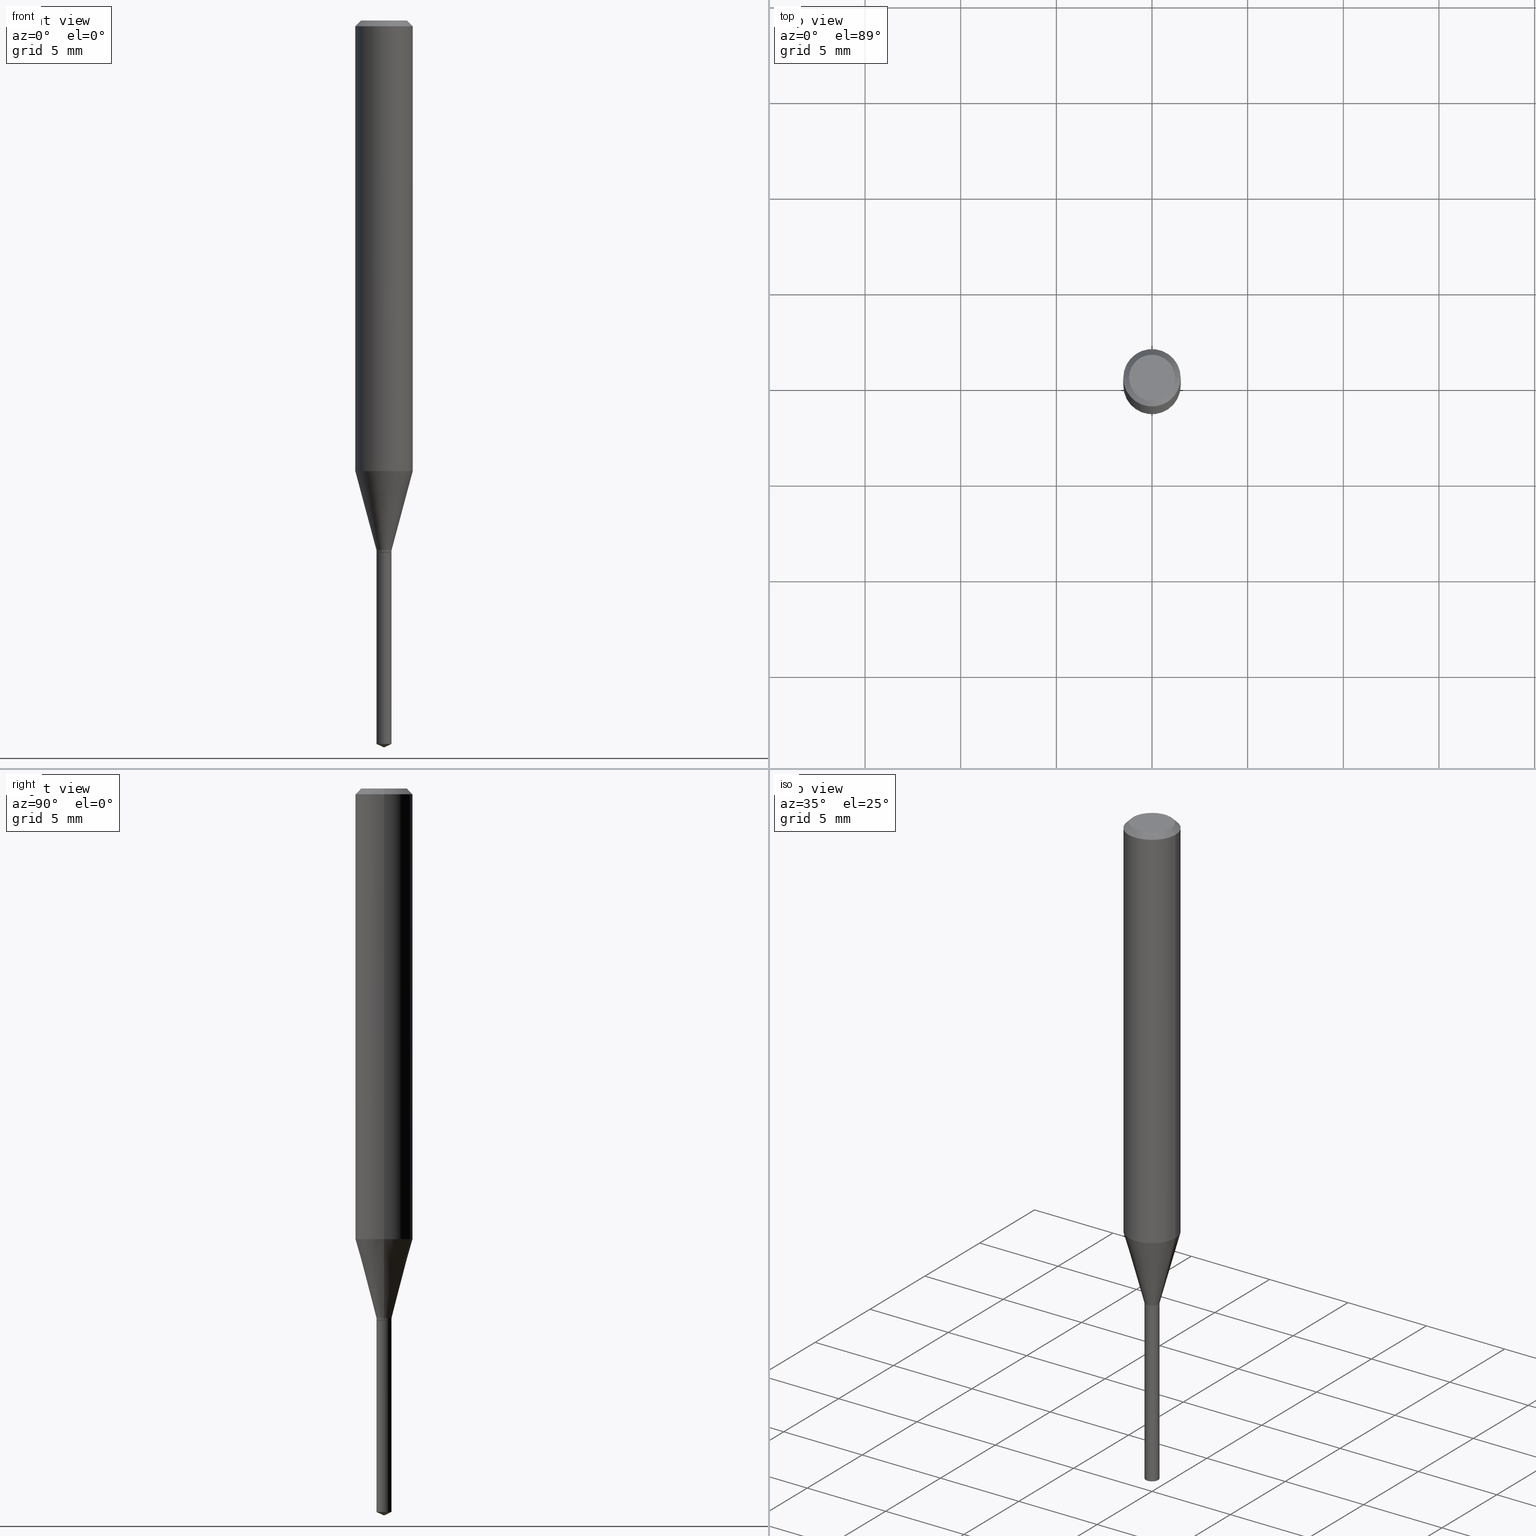
[diagram: canonical four-view strip — front | top / right | iso, engineering-drawing reading convention]
A machine part, canonical four-view strip (front | top / right | iso — engineering-drawing reading convention). The complete STEP part file that produces these views, byte-faithful:
ISO-10303-21;
HEADER;
FILE_DESCRIPTION (( 'STEP AP203' ),
    '1' );
FILE_NAME ('07799.STEP',
    '2024-04-24T03:17:24',
    ( '' ),
    ( '' ),
    'SwSTEP 2.0',
    'SolidWorks 2023',
    '' );
FILE_SCHEMA (( 'CONFIG_CONTROL_DESIGN' ));
ENDSEC;

DATA;
#1 = ORIENTED_EDGE ( 'NONE', *, *, #365, .T. ) ;
#2 = DIRECTION ( 'NONE',  ( -1.000000000000000000, 6.982962677686266711E-15, 0.000000000000000000 ) ) ;
#3 = EDGE_LOOP ( 'NONE', ( #434, #405, #49, #160 ) ) ;
#4 = EDGE_CURVE ( 'NONE', #55, #474, #259, .T. ) ;
#5 = CARTESIAN_POINT ( 'NONE',  ( -9.261968845786000133E-28, 1.322362114038720264E-13, 37.87397874015748300 ) ) ;
#6 = CIRCLE ( 'NONE', #463, 0.05904999999999999832 ) ;
#7 = DIRECTION ( 'NONE',  ( 6.982962677686265922E-15, 1.000000000000000000, -3.491479321953280158E-15 ) ) ;
#8 = ADVANCED_FACE ( 'NONE', ( #450 ), #169, .T. ) ;
#9 = CARTESIAN_POINT ( 'NONE',  ( 2.676565608369631794E-29, -3.821426325363822773E-15, -1.094499999999999806 ) ) ;
#10 = EDGE_CURVE ( 'NONE', #55, #226, #229, .T. ) ;
#11 = DIRECTION ( 'NONE',  ( -2.445468806185136597E-29, 3.491481338843145583E-15, 1.000000000000000000 ) ) ;
#12 = AXIS2_PLACEMENT_3D ( 'NONE', #380, #415, #65 ) ;
#13 = AXIS2_PLACEMENT_3D ( 'NONE', #390, #212, #276 ) ;
#14 = AXIS2_PLACEMENT_3D ( 'NONE', #332, #477, #142 ) ;
#15 = CARTESIAN_POINT ( 'NONE',  ( 2.676565608369632355E-29, -3.821426325363822773E-15, -1.094500000000000028 ) ) ;
#16 = CC_DESIGN_PERSON_AND_ORGANIZATION_ASSIGNMENT ( #107, #443, ( #481 ) ) ;
#17 = DIRECTION ( 'NONE',  ( 1.000000000000000000, -6.982962677686265922E-15, 4.876176775795935793E-29 ) ) ;
#18 = ORIENTED_EDGE ( 'NONE', *, *, #408, .T. ) ;
#19 = CARTESIAN_POINT ( 'NONE',  ( -0.01554999999999999959, -3.701859078472134923E-15, -1.093999999999999861 ) ) ;
#20 = EDGE_LOOP ( 'NONE', ( #404, #18, #346 ) ) ;
#21 = VECTOR ( 'NONE', #246, 39.37007874015748143 ) ;
#22 = LOCAL_TIME ( 23, 17, 24.00000000000000000, #37 ) ;
#23 = DIRECTION ( 'NONE',  ( -2.445468806185136597E-29, 3.491481338843145583E-15, 1.000000000000000000 ) ) ;
#24 = CC_DESIGN_PERSON_AND_ORGANIZATION_ASSIGNMENT ( #68, #309, ( #428 ) ) ;
#25 = EDGE_LOOP ( 'NONE', ( #306, #269 ) ) ;
#26 = DIRECTION ( 'NONE',  ( -2.445470214571802116E-29, 3.491479321953280158E-15, 1.000000000000000000 ) ) ;
#27 = VERTEX_POINT ( 'NONE', #157 ) ;
#28 = APPROVAL_ROLE ( '' ) ;
#29 = ORIENTED_EDGE ( 'NONE', *, *, #360, .F. ) ;
#30 =( CONVERSION_BASED_UNIT ( 'INCH', #191 ) LENGTH_UNIT ( ) NAMED_UNIT ( #249 ) );
#31 = CONICAL_SURFACE ( 'NONE', #121, 84.42940631927405093, 1.134464013796314674 ) ;
#32 = EDGE_CURVE ( 'NONE', #226, #334, #427, .T. ) ;
#33 = CARTESIAN_POINT ( 'NONE',  ( 0.04724000000000000421, -3.852183633974369345E-16, -3.380025165621689721E-19 ) ) ;
#34 = DIRECTION ( 'NONE',  ( 2.438088387897960049E-29, -3.491481338843145188E-15, -1.000000000000000000 ) ) ;
#35 = APPROVAL_DATE_TIME ( #236, #231 ) ;
#36 = EDGE_LOOP ( 'NONE', ( #195, #227, #402, #416 ) ) ;
#37 = COORDINATED_UNIVERSAL_TIME_OFFSET ( 5, 0, .BEHIND. ) ;
#38 = AXIS2_PLACEMENT_3D ( 'NONE', #190, #447, #75 ) ;
#39 = DIRECTION ( 'NONE',  ( -6.982962677686265922E-15, -1.000000000000000000, 0.000000000000000000 ) ) ;
#40 = EDGE_LOOP ( 'NONE', ( #158, #181, #175, #490 ) ) ;
#41 = CC_DESIGN_APPROVAL ( #129, ( #428 ) ) ;
#42 = EDGE_CURVE ( 'NONE', #381, #254, #200, .T. ) ;
#43 = CYLINDRICAL_SURFACE ( 'NONE', #153, 0.01554999999999999959 ) ;
#44 = VERTEX_POINT ( 'NONE', #234 ) ;
#45 = FACE_OUTER_BOUND ( 'NONE', #145, .T. ) ;
#46 = DIRECTION ( 'NONE',  ( -2.445468806185136597E-29, 3.491481338843145583E-15, 1.000000000000000000 ) ) ;
#47 = AXIS2_PLACEMENT_3D ( 'NONE', #356, #11, #130 ) ;
#48 = CYLINDRICAL_SURFACE ( 'NONE', #313, 0.05905000000000005383 ) ;
#49 = ORIENTED_EDGE ( 'NONE', *, *, #435, .T. ) ;
#50 = PLANE ( 'NONE',  #358 ) ;
#51 = CARTESIAN_POINT ( 'NONE',  ( 3.658667988020872822E-29, -5.223602213574301462E-15, -1.496099999999999985 ) ) ;
#52 = EDGE_CURVE ( 'NONE', #474, #55, #119, .T. ) ;
#53 = ADVANCED_FACE ( 'NONE', ( #80 ), #305, .F. ) ;
#54 = CARTESIAN_POINT ( 'NONE',  ( -0.01504999999999999914, -3.711840416457816439E-15, -1.094500000000000028 ) ) ;
#55 = VERTEX_POINT ( 'NONE', #263 ) ;
#56 = APPLICATION_CONTEXT ( 'configuration controlled 3d designs of mechanical parts and assemblies' ) ;
#57 = LINE ( 'NONE', #433, #144 ) ;
#58 = EDGE_CURVE ( 'NONE', #381, #217, #161, .T. ) ;
#59 = ORIENTED_EDGE ( 'NONE', *, *, #352, .T. ) ;
#60 = CIRCLE ( 'NONE', #223, 0.01554999999999999959 ) ;
#61 = CIRCLE ( 'NONE', #196, 0.05905000000000010935 ) ;
#62 = CARTESIAN_POINT ( 'NONE',  ( 1.104893954107319992E-16, 0.01554999999999480235, -1.488848915915689686 ) ) ;
#63 = ORIENTED_EDGE ( 'NONE', *, *, #383, .T. ) ;
#64 = CALENDAR_DATE ( 2024, 23, 4 ) ;
#65 = DIRECTION ( 'NONE',  ( 1.000000000000000000, -6.982962677686258822E-15, 0.000000000000000000 ) ) ;
#66 = ADVANCED_FACE ( 'NONE', ( #71 ), #320, .T. ) ;
#67 = AXIS2_PLACEMENT_3D ( 'NONE', #446, #34, #110 ) ;
#68 = PERSON_AND_ORGANIZATION ( #123, #343 ) ;
#69 = VECTOR ( 'NONE', #108, 39.37007874015748143 ) ;
#70 = AXIS2_PLACEMENT_3D ( 'NONE', #425, #46, #85 ) ;
#71 = FACE_OUTER_BOUND ( 'NONE', #140, .T. ) ;
#72 = FACE_OUTER_BOUND ( 'NONE', #20, .T. ) ;
#73 = ORIENTED_EDGE ( 'NONE', *, *, #42, .F. ) ;
#74 = APPROVAL_STATUS ( 'not_yet_approved' ) ;
#75 = DIRECTION ( 'NONE',  ( 1.000000000000000000, -6.982962677686266711E-15, 0.000000000000000000 ) ) ;
#76 = ORIENTED_EDGE ( 'NONE', *, *, #187, .F. ) ;
#77 = DATE_TIME_ROLE ( 'classification_date' ) ;
#78 = LOCAL_TIME ( 23, 17, 24.00000000000000000, #379 ) ;
#79 = AXIS2_PLACEMENT_3D ( 'NONE', #485, #338, #150 ) ;
#80 = FACE_OUTER_BOUND ( 'NONE', #25, .T. ) ;
#81 = ORIENTED_EDGE ( 'NONE', *, *, #277, .T. ) ;
#82 = CARTESIAN_POINT ( 'NONE',  ( -1.085850696379850431E-16, -0.01555000000000520202, -1.488848915915689686 ) ) ;
#83 = ADVANCED_FACE ( 'NONE', ( #192 ), #340, .T. ) ;
#84 = PERSON_AND_ORGANIZATION ( #123, #343 ) ;
#85 = DIRECTION ( 'NONE',  ( 1.000000000000000000, -6.982962677686258822E-15, 0.000000000000000000 ) ) ;
#86 = ADVANCED_FACE ( 'NONE', ( #72 ), #299, .T. ) ;
#87 = CARTESIAN_POINT ( 'NONE',  ( -1.085850696379946697E-16, -0.01555000000000382118, -1.094499999999999806 ) ) ;
#88 = AXIS2_PLACEMENT_3D ( 'NONE', #452, #273, #194 ) ;
#89 = AXIS2_PLACEMENT_3D ( 'NONE', #370, #397, #399 ) ;
#90 = COORDINATED_UNIVERSAL_TIME_OFFSET ( 5, 0, .BEHIND. ) ;
#91 = CYLINDRICAL_SURFACE ( 'NONE', #170, 0.01554999999999999959 ) ;
#92 = ORIENTED_EDGE ( 'NONE', *, *, #337, .T. ) ;
#93 = DIRECTION ( 'NONE',  ( -6.982962677686265922E-15, -1.000000000000000000, 0.000000000000000000 ) ) ;
#94 = CARTESIAN_POINT ( 'NONE',  ( -0.01554999999999999959, -3.694526967660564608E-15, -1.089799999999999880 ) ) ;
#95 = ADVANCED_FACE ( 'NONE', ( #417 ), #112, .T. ) ;
#96 = VECTOR ( 'NONE', #350, 39.37007874015748854 ) ;
#97 = DIRECTION ( 'NONE',  ( -2.445468806185136597E-29, 3.491481338843145583E-15, 1.000000000000000000 ) ) ;
#98 = LINE ( 'NONE', #131, #322 ) ;
#99 = ORIENTED_EDGE ( 'NONE', *, *, #323, .T. ) ;
#100 = CARTESIAN_POINT ( 'NONE',  ( -4.260016345039616409E-29, -1.375500648837224634E-14, -1.094500000000000028 ) ) ;
#101 = CONICAL_SURFACE ( 'NONE', #89, 0.01554999999999999959, 0.2617993877991498519 ) ;
#102 = AXIS2_PLACEMENT_3D ( 'NONE', #480, #233, #310 ) ;
#103 = VERTEX_POINT ( 'NONE', #342 ) ;
#104 = AXIS2_PLACEMENT_3D ( 'NONE', #284, #248, #2 ) ;
#105 = DIRECTION ( 'NONE',  ( -2.445470214571802116E-29, 3.491479321953280158E-15, 1.000000000000000000 ) ) ;
#106 = ORIENTED_EDGE ( 'NONE', *, *, #468, .F. ) ;
#107 = PERSON_AND_ORGANIZATION ( #123, #343 ) ;
#108 = DIRECTION ( 'NONE',  ( -2.445470214571802396E-29, 3.491479321953280158E-15, 1.000000000000000000 ) ) ;
#109 = CC_DESIGN_PERSON_AND_ORGANIZATION_ASSIGNMENT ( #193, #335, ( #114 ) ) ;
#110 = DIRECTION ( 'NONE',  ( -1.000000000000000000, 6.982962677686265922E-15, -4.876176775795935793E-29 ) ) ;
#111 = CARTESIAN_POINT ( 'NONE',  ( 0.01554999999999999959, -1.085850696380214293E-16, 7.582454886362679997E-31 ) ) ;
#112 = CYLINDRICAL_SURFACE ( 'NONE', #240, 0.05905000000000005383 ) ;
#113 = EDGE_LOOP ( 'NONE', ( #63, #92, #106, #76 ) ) ;
#114 = PRODUCT_DEFINITION ( 'UNKNOWN', '', #428, #208 ) ;
#115 = PERSON_AND_ORGANIZATION_ROLE ( 'design_owner' ) ;
#116 = CARTESIAN_POINT ( 'NONE',  ( -0.05904999999999999832, 3.711095515056362547E-16, -0.01181000000000007044 ) ) ;
#117 = DIRECTION ( 'NONE',  ( -2.445470214571802116E-29, 3.491479321953280158E-15, 1.000000000000000000 ) ) ;
#118 = EDGE_LOOP ( 'NONE', ( #348, #328, #442, #419 ) ) ;
#119 = CIRCLE ( 'NONE', #79, 0.04724000000000000421 ) ;
#120 = CARTESIAN_POINT ( 'NONE',  ( 1.104893954107320238E-16, 0.01554999999999617626, -1.094499999999999806 ) ) ;
#121 = AXIS2_PLACEMENT_3D ( 'NONE', #5, #455, #392 ) ;
#122 = CARTESIAN_POINT ( 'NONE',  ( 2.665071904980561815E-29, -3.805016363071259851E-15, -1.089799999999999880 ) ) ;
#123 = PERSON ( 'UNSPECIFIED', 'UNSPECIFIED', 'UNSPECIFIED', ('UNSPECIFIED'), ('UNSPECIFIED'), ('UNSPECIFIED') ) ;
#124 = APPROVAL_DATE_TIME ( #389, #424 ) ;
#125 = CARTESIAN_POINT ( 'NONE',  ( 0.01554999999999999959, -3.913601432709281317E-15, -1.089799999999999880 ) ) ;
#126 = UNCERTAINTY_MEASURE_WITH_UNIT (LENGTH_MEASURE( 1.000000000000000082E-05 ), #30, 'distance_accuracy_value', 'NONE');
#127 = APPROVAL_ROLE ( '' ) ;
#128 = FACE_OUTER_BOUND ( 'NONE', #118, .T. ) ;
#129 = APPROVAL ( #382, 'UNSPECIFIED' ) ;
#130 = DIRECTION ( 'NONE',  ( 1.000000000000000000, -6.982962677686258822E-15, 0.000000000000000000 ) ) ;
#131 = CARTESIAN_POINT ( 'NONE',  ( 3.658668015054778287E-29, -5.223602213574301462E-15, -1.496099999999999985 ) ) ;
#132 = DIRECTION ( 'NONE',  ( -2.445468806185136597E-29, 3.491481338843145583E-15, 1.000000000000000000 ) ) ;
#133 = CARTESIAN_POINT ( 'NONE',  ( 2.665071904980561815E-29, -3.805016363071259851E-15, -1.089799999999999880 ) ) ;
#134 = ORIENTED_EDGE ( 'NONE', *, *, #58, .T. ) ;
#135 = VECTOR ( 'NONE', #186, 39.37007874015748143 ) ;
#136 = AXIS2_PLACEMENT_3D ( 'NONE', #173, #26, #257 ) ;
#137 = DIRECTION ( 'NONE',  ( 1.000000000000000000, -6.982962677686265922E-15, 4.876176775795935793E-29 ) ) ;
#138 = EDGE_LOOP ( 'NONE', ( #222, #224, #256, #388 ) ) ;
#139 = LINE ( 'NONE', #94, #407 ) ;
#140 = EDGE_LOOP ( 'NONE', ( #177, #143, #385, #311 ) ) ;
#141 = ORIENTED_EDGE ( 'NONE', *, *, #323, .F. ) ;
#142 = DIRECTION ( 'NONE',  ( 1.000000000000000000, -6.982962677686261189E-15, 0.000000000000000000 ) ) ;
#143 = ORIENTED_EDGE ( 'NONE', *, *, #279, .T. ) ;
#144 = VECTOR ( 'NONE', #438, 39.37007874015748143 ) ;
#145 = EDGE_LOOP ( 'NONE', ( #99, #1, #369, #372 ) ) ;
#146 = VECTOR ( 'NONE', #355, 39.37007874015748143 ) ;
#147 = APPROVAL_PERSON_ORGANIZATION ( #152, #129, #28 ) ;
#148 = PRODUCT_DEFINITION_SHAPE ( 'NONE', 'NONE',  #114 ) ;
#149 = DIRECTION ( 'NONE',  ( 1.000000000000000000, -6.982962677686267499E-15, 0.000000000000000000 ) ) ;
#150 = DIRECTION ( 'NONE',  ( 1.000000000000000000, -6.982962677686266711E-15, 4.876185090822587894E-29 ) ) ;
#151 = AXIS2_PLACEMENT_3D ( 'NONE', #467, #132, #288 ) ;
#152 = PERSON_AND_ORGANIZATION ( #123, #343 ) ;
#153 = AXIS2_PLACEMENT_3D ( 'NONE', #282, #247, #396 ) ;
#154 =( GEOMETRIC_REPRESENTATION_CONTEXT ( 3 ) GLOBAL_UNCERTAINTY_ASSIGNED_CONTEXT ( ( #126 ) ) GLOBAL_UNIT_ASSIGNED_CONTEXT ( ( #30, #270, #197 ) ) REPRESENTATION_CONTEXT ( 'NONE', 'WORKASPACE' ) );
#155 = CARTESIAN_POINT ( 'NONE',  ( -0.01504999999999999914, -3.714489643631927640E-15, -1.094500000000000028 ) ) ;
#156 = DATE_AND_TIME ( #344, #22 ) ;
#157 = CARTESIAN_POINT ( 'NONE',  ( -1.085850696379946697E-16, -0.01555000000000382118, -1.094499999999999806 ) ) ;
#158 = ORIENTED_EDGE ( 'NONE', *, *, #365, .F. ) ;
#159 = CARTESIAN_POINT ( 'NONE',  ( 2.675342873966538993E-29, -3.819680584694400481E-15, -1.093999999999999861 ) ) ;
#160 = ORIENTED_EDGE ( 'NONE', *, *, #462, .F. ) ;
#161 = CIRCLE ( 'NONE', #471, 0.01554999999999999959 ) ;
#162 = CARTESIAN_POINT ( 'NONE',  ( 0.01554999999999999959, -3.913601432709281317E-15, -1.089799999999999880 ) ) ;
#163 = AXIS2_PLACEMENT_3D ( 'NONE', #9, #461, #93 ) ;
#164 = CALENDAR_DATE ( 2024, 23, 4 ) ;
#165 = FACE_OUTER_BOUND ( 'NONE', #470, .T. ) ;
#166 = DIRECTION ( 'NONE',  ( -2.445468806185136597E-29, 3.491481338843145583E-15, 1.000000000000000000 ) ) ;
#167 = ORIENTED_EDGE ( 'NONE', *, *, #283, .T. ) ;
#168 = CARTESIAN_POINT ( 'NONE',  ( 0.05905000000000010935, -3.650538529053141123E-15, -0.9274557898707536108 ) ) ;
#169 = CONICAL_SURFACE ( 'NONE', #12, 0.01504999999999999914, 0.7853981633972754173 ) ;
#170 = AXIS2_PLACEMENT_3D ( 'NONE', #314, #458, #464 ) ;
#171 = CIRCLE ( 'NONE', #199, 0.05905000000000010935 ) ;
#172 = DIRECTION ( 'NONE',  ( 1.000000000000000000, -6.982962677686261189E-15, 0.000000000000000000 ) ) ;
#173 = CARTESIAN_POINT ( 'NONE',  ( 2.676565608369631794E-29, -3.821426325363822773E-15, -1.094499999999999806 ) ) ;
#174 = EDGE_CURVE ( 'NONE', #439, #449, #489, .T. ) ;
#175 = ORIENTED_EDGE ( 'NONE', *, *, #466, .T. ) ;
#176 = DIRECTION ( 'NONE',  ( -2.445468806185136877E-29, 3.491481338843145188E-15, 1.000000000000000000 ) ) ;
#177 = ORIENTED_EDGE ( 'NONE', *, *, #52, .F. ) ;
#178 = MANIFOLD_SOLID_BREP ( 'Body-Move/Copy2[1]', #280 ) ;
#179 = DIRECTION ( 'NONE',  ( -2.438088387897960049E-29, 3.491481338843145188E-15, 1.000000000000000000 ) ) ;
#180 = VERTEX_POINT ( 'NONE', #243 ) ;
#181 = ORIENTED_EDGE ( 'NONE', *, *, #462, .T. ) ;
#182 = DIRECTION ( 'NONE',  ( 1.000000000000000000, -6.982962677686267499E-15, 0.000000000000000000 ) ) ;
#183 = ORIENTED_EDGE ( 'NONE', *, *, #304, .F. ) ;
#184 = ORIENTED_EDGE ( 'NONE', *, *, #435, .F. ) ;
#185 = PERSON_AND_ORGANIZATION ( #123, #343 ) ;
#186 = DIRECTION ( 'NONE',  ( -0.7071067811864253372, 7.493145998869912398E-15, 0.7071067811866698083 ) ) ;
#187 = EDGE_CURVE ( 'NONE', #235, #307, #429, .T. ) ;
#188 = CIRCLE ( 'NONE', #281, 0.01554999999999999959 ) ;
#189 = MECHANICAL_CONTEXT ( 'NONE', #211, 'mechanical' ) ;
#190 = CARTESIAN_POINT ( 'NONE',  ( 2.888098660104663766E-31, -4.123439461173779647E-17, -0.01181000000000007044 ) ) ;
#191 = LENGTH_MEASURE_WITH_UNIT ( LENGTH_MEASURE( 0.02539999999999999897 ), #451 );
#192 = FACE_OUTER_BOUND ( 'NONE', #476, .T. ) ;
#193 = PERSON_AND_ORGANIZATION ( #123, #343 ) ;
#194 = DIRECTION ( 'NONE',  ( -6.982962677686267499E-15, -1.000000000000000000, 3.520397390770465703E-15 ) ) ;
#195 = ORIENTED_EDGE ( 'NONE', *, *, #326, .T. ) ;
#196 = AXIS2_PLACEMENT_3D ( 'NONE', #378, #303, #149 ) ;
#197 =( NAMED_UNIT ( * ) SI_UNIT ( $, .STERADIAN. ) SOLID_ANGLE_UNIT ( ) );
#198 = AXIS2_PLACEMENT_3D ( 'NONE', #15, #293, #475 ) ;
#199 = AXIS2_PLACEMENT_3D ( 'NONE', #436, #296, #182 ) ;
#200 = LINE ( 'NONE', #237, #69 ) ;
#201 = ORIENTED_EDGE ( 'NONE', *, *, #32, .F. ) ;
#202 = DIRECTION ( 'NONE',  ( 1.000000000000000000, -6.982962677686261189E-15, 0.000000000000000000 ) ) ;
#203 = EDGE_LOOP ( 'NONE', ( #262, #167 ) ) ;
#204 = DIRECTION ( 'NONE',  ( 1.000000000000000000, -6.982962677686266711E-15, 4.876176775795935793E-29 ) ) ;
#205 = ADVANCED_FACE ( 'NONE', ( #423 ), #48, .T. ) ;
#206 = LINE ( 'NONE', #275, #411 ) ;
#207 = LOCAL_TIME ( 23, 17, 24.00000000000000000, #341 ) ;
#208 = DESIGN_CONTEXT ( 'detailed design', #56, 'design' ) ;
#209 = SHAPE_DEFINITION_REPRESENTATION ( #148, #286 ) ;
#210 = CARTESIAN_POINT ( 'NONE',  ( 0.05904999999999999832, -4.463468013801466955E-16, -0.01181000000000007044 ) ) ;
#211 = APPLICATION_CONTEXT ( 'configuration controlled 3d designs of mechanical parts and assemblies' ) ;
#212 = DIRECTION ( 'NONE',  ( -2.445468806185136597E-29, 3.491481338843145583E-15, 1.000000000000000000 ) ) ;
#213 = ADVANCED_FACE ( 'NONE', ( #128 ), #393, .T. ) ;
#214 = CARTESIAN_POINT ( 'NONE',  ( -0.05905000000000010935, -2.818619097469426315E-15, -0.9274557898707536108 ) ) ;
#215 = VECTOR ( 'NONE', #486, 39.37007874015748143 ) ;
#216 = DIRECTION ( 'NONE',  ( 1.000000000000000000, -6.982962677686266711E-15, 0.000000000000000000 ) ) ;
#217 = VERTEX_POINT ( 'NONE', #82 ) ;
#218 = ADVANCED_FACE ( 'NONE', ( #165 ), #31, .T. ) ;
#219 = DIRECTION ( 'NONE',  ( 1.000000000000000000, -6.982962677686261189E-15, 0.000000000000000000 ) ) ;
#220 = ORIENTED_EDGE ( 'NONE', *, *, #58, .F. ) ;
#221 = CARTESIAN_POINT ( 'NONE',  ( 3.658664905062460986E-29, -5.223606628546217219E-15, -1.496099999999999985 ) ) ;
#222 = ORIENTED_EDGE ( 'NONE', *, *, #279, .F. ) ;
#223 = AXIS2_PLACEMENT_3D ( 'NONE', #159, #431, #172 ) ;
#224 = ORIENTED_EDGE ( 'NONE', *, *, #4, .F. ) ;
#225 = CARTESIAN_POINT ( 'NONE',  ( 3.640934136390131342E-29, -5.198287410918146511E-15, -1.488848915915689686 ) ) ;
#226 = VERTEX_POINT ( 'NONE', #278 ) ;
#227 = ORIENTED_EDGE ( 'NONE', *, *, #42, .T. ) ;
#228 = APPROVAL_DATE_TIME ( #156, #129 ) ;
#229 = LINE ( 'NONE', #116, #298 ) ;
#230 = VECTOR ( 'NONE', #176, 39.37007874015748143 ) ;
#231 = APPROVAL ( #74, 'UNSPECIFIED' ) ;
#232 = SECURITY_CLASSIFICATION_LEVEL ( 'unclassified' ) ;
#233 = DIRECTION ( 'NONE',  ( 2.445468806185136597E-29, -3.491481338843145583E-15, -1.000000000000000000 ) ) ;
#234 = CARTESIAN_POINT ( 'NONE',  ( 0.01504999999999999914, -3.926519913663001232E-15, -1.094500000000000028 ) ) ;
#235 = VERTEX_POINT ( 'NONE', #162 ) ;
#236 = DATE_AND_TIME ( #64, #78 ) ;
#237 = CARTESIAN_POINT ( 'NONE',  ( 1.104893954107223233E-16, 0.01554999999999617626, -1.094499999999999806 ) ) ;
#238 = EDGE_LOOP ( 'NONE', ( #437, #362, #59, #201 ) ) ;
#239 = CIRCLE ( 'NONE', #14, 0.01554999999999999959 ) ;
#240 = AXIS2_PLACEMENT_3D ( 'NONE', #268, #241, #413 ) ;
#241 = DIRECTION ( 'NONE',  ( -2.445468806185136597E-29, 3.491481338843145583E-15, 1.000000000000000000 ) ) ;
#242 = ADVANCED_FACE ( 'NONE', ( #45 ), #91, .T. ) ;
#243 = CARTESIAN_POINT ( 'NONE',  ( 0.01554999999999999959, -3.928265654332421947E-15, -1.093999999999999861 ) ) ;
#244 = CARTESIAN_POINT ( 'NONE',  ( 2.676565608369631794E-29, -3.821426325363822773E-15, -1.094499999999999806 ) ) ;
#245 = CIRCLE ( 'NONE', #420, 0.01554999999999999959 ) ;
#246 = DIRECTION ( 'NONE',  ( -2.445470214571802396E-29, 3.491479321953280158E-15, 1.000000000000000000 ) ) ;
#247 = DIRECTION ( 'NONE',  ( -2.445470214571802116E-29, 3.491479321953280158E-15, 1.000000000000000000 ) ) ;
#248 = DIRECTION ( 'NONE',  ( 2.445468806185136597E-29, -3.491481338843145583E-15, -1.000000000000000000 ) ) ;
#249 = DIMENSIONAL_EXPONENTS ( 1.000000000000000000, 0.000000000000000000, 0.000000000000000000, 0.000000000000000000, 0.000000000000000000, 0.000000000000000000, 0.000000000000000000 ) ;
#250 = DIRECTION ( 'NONE',  ( 6.439704144417026409E-15, 0.9063077870366516020, 0.4226182617406958331 ) ) ;
#251 = EDGE_CURVE ( 'NONE', #330, #226, #206, .T. ) ;
#252 = VECTOR ( 'NONE', #329, 39.37007874015748143 ) ;
#253 = LINE ( 'NONE', #221, #421 ) ;
#254 = VERTEX_POINT ( 'NONE', #120 ) ;
#255 = CARTESIAN_POINT ( 'NONE',  ( -0.01554999999999999959, 1.104893954106955760E-16, -7.648944065346377773E-31 ) ) ;
#256 = ORIENTED_EDGE ( 'NONE', *, *, #10, .T. ) ;
#257 = DIRECTION ( 'NONE',  ( -6.982962677686265922E-15, -1.000000000000000000, 0.000000000000000000 ) ) ;
#258 = LOCAL_TIME ( 23, 17, 24.00000000000000000, #376 ) ;
#259 = CIRCLE ( 'NONE', #151, 0.04724000000000000421 ) ;
#260 = AXIS2_PLACEMENT_3D ( 'NONE', #133, #465, #219 ) ;
#261 = CARTESIAN_POINT ( 'NONE',  ( 0.000000000000000000, 0.000000000000000000, 0.000000000000000000 ) ) ;
#262 = ORIENTED_EDGE ( 'NONE', *, *, #375, .T. ) ;
#263 = CARTESIAN_POINT ( 'NONE',  ( -0.04724000000000000421, 3.504923541997677355E-16, -3.380025165670481712E-19 ) ) ;
#264 = EDGE_CURVE ( 'NONE', #103, #235, #245, .T. ) ;
#265 = CIRCLE ( 'NONE', #47, 0.01504999999999999914 ) ;
#266 = CC_DESIGN_SECURITY_CLASSIFICATION ( #481, ( #428 ) ) ;
#267 = DIRECTION ( 'NONE',  ( 0.000000000000000000, 0.000000000000000000, 1.000000000000000000 ) ) ;
#268 = CARTESIAN_POINT ( 'NONE',  ( 0.000000000000000000, 0.000000000000000000, 0.000000000000000000 ) ) ;
#269 = ORIENTED_EDGE ( 'NONE', *, *, #52, .T. ) ;
#270 =( NAMED_UNIT ( * ) PLANE_ANGLE_UNIT ( ) SI_UNIT ( $, .RADIAN. ) );
#271 = ORIENTED_EDGE ( 'NONE', *, *, #448, .T. ) ;
#272 = ADVANCED_FACE ( 'NONE', ( #319 ), #367, .T. ) ;
#273 = DIRECTION ( 'NONE',  ( -2.445470214571802116E-29, 3.491479321953280158E-15, 1.000000000000000000 ) ) ;
#274 = ADVANCED_FACE ( 'NONE', ( #354 ), #50, .F. ) ;
#275 = CARTESIAN_POINT ( 'NONE',  ( -0.05905000000000005383, 4.195754854663395423E-16, -2.904631170795524694E-30 ) ) ;
#276 = DIRECTION ( 'NONE',  ( 1.000000000000000000, -6.982962677686261189E-15, 0.000000000000000000 ) ) ;
#277 = EDGE_CURVE ( 'NONE', #217, #27, #459, .T. ) ;
#278 = CARTESIAN_POINT ( 'NONE',  ( -0.05904999999999999832, -1.220139003307412078E-15, -0.01181000000000007044 ) ) ;
#279 = EDGE_CURVE ( 'NONE', #474, #334, #395, .T. ) ;
#280 = CLOSED_SHELL ( 'NONE', ( #287, #86, #218, #83, #274 ) ) ;
#281 = AXIS2_PLACEMENT_3D ( 'NONE', #225, #105, #363 ) ;
#282 = CARTESIAN_POINT ( 'NONE',  ( 2.676565608369631794E-29, -3.821426325363822773E-15, -1.094499999999999806 ) ) ;
#283 = EDGE_CURVE ( 'NONE', #254, #27, #377, .T. ) ;
#284 = CARTESIAN_POINT ( 'NONE',  ( 2.888098660104663766E-31, -4.123439461173779647E-17, -0.01181000000000007044 ) ) ;
#285 = CARTESIAN_POINT ( 'NONE',  ( 0.05905000000000005383, -4.123439461173744271E-16, 2.879382386107502672E-30 ) ) ;
#286 = ADVANCED_BREP_SHAPE_REPRESENTATION ( '07799', ( #178, #484, #394 ), #154 ) ;
#287 = ADVANCED_FACE ( 'NONE', ( #347 ), #43, .T. ) ;
#288 = DIRECTION ( 'NONE',  ( 1.000000000000000000, -6.982962677686266711E-15, 4.876185090822587894E-29 ) ) ;
#289 = CARTESIAN_POINT ( 'NONE',  ( 2.888098660104663766E-31, -4.123439461173779647E-17, -0.01181000000000007044 ) ) ;
#290 = ORIENTED_EDGE ( 'NONE', *, *, #408, .F. ) ;
#291 = DIRECTION ( 'NONE',  ( -6.328713451373370956E-15, -0.9063077870366487154, 0.4226182617407022724 ) ) ;
#292 = EDGE_LOOP ( 'NONE', ( #364, #333, #141, #184 ) ) ;
#293 = DIRECTION ( 'NONE',  ( -2.445468806185136597E-29, 3.491481338843145583E-15, 1.000000000000000000 ) ) ;
#294 = EDGE_LOOP ( 'NONE', ( #368, #295, #453, #374 ) ) ;
#295 = ORIENTED_EDGE ( 'NONE', *, *, #251, .T. ) ;
#296 = DIRECTION ( 'NONE',  ( -2.445468806185136597E-29, 3.491481338843145583E-15, 1.000000000000000000 ) ) ;
#297 = APPROVAL_PERSON_ORGANIZATION ( #301, #231, #409 ) ;
#298 = VECTOR ( 'NONE', #345, 39.37007874015748143 ) ;
#299 = CONICAL_SURFACE ( 'NONE', #88, 84.42940631927405093, 1.134464013796314674 ) ;
#300 = LOCAL_TIME ( 23, 17, 24.00000000000000000, #90 ) ;
#301 = PERSON_AND_ORGANIZATION ( #123, #343 ) ;
#302 = PRODUCT ( '07799', '07799', '', ( #189 ) ) ;
#303 = DIRECTION ( 'NONE',  ( -2.445468806185136597E-29, 3.491481338843145583E-15, 1.000000000000000000 ) ) ;
#304 = EDGE_CURVE ( 'NONE', #439, #44, #265, .T. ) ;
#305 = PLANE ( 'NONE',  #67 ) ;
#306 = ORIENTED_EDGE ( 'NONE', *, *, #4, .T. ) ;
#307 = VERTEX_POINT ( 'NONE', #168 ) ;
#308 = ADVANCED_FACE ( 'NONE', ( #321 ), #398, .T. ) ;
#309 = PERSON_AND_ORGANIZATION_ROLE ( 'design_supplier' ) ;
#310 = DIRECTION ( 'NONE',  ( -1.000000000000000000, 6.982962677686266711E-15, 0.000000000000000000 ) ) ;
#311 = ORIENTED_EDGE ( 'NONE', *, *, #10, .F. ) ;
#312 = DIRECTION ( 'NONE',  ( -2.445468806185136877E-29, 3.491481338843145188E-15, 1.000000000000000000 ) ) ;
#313 = AXIS2_PLACEMENT_3D ( 'NONE', #430, #166, #204 ) ;
#314 = CARTESIAN_POINT ( 'NONE',  ( 0.000000000000000000, 0.000000000000000000, 0.000000000000000000 ) ) ;
#315 = PRODUCT_RELATED_PRODUCT_CATEGORY ( 'detail', '', ( #302 ) ) ;
#316 = DATE_AND_TIME ( #164, #258 ) ;
#317 = DIRECTION ( 'NONE',  ( 2.445470214571801836E-29, -3.491479321953280158E-15, -1.000000000000000000 ) ) ;
#318 = CALENDAR_DATE ( 2024, 23, 4 ) ;
#319 = FACE_OUTER_BOUND ( 'NONE', #292, .T. ) ;
#320 = CONICAL_SURFACE ( 'NONE', #102, 0.05904999999999999832, 0.7853981633974452814 ) ;
#321 = FACE_OUTER_BOUND ( 'NONE', #138, .T. ) ;
#322 = VECTOR ( 'NONE', #250, 39.37007874015748143 ) ;
#323 = EDGE_CURVE ( 'NONE', #180, #449, #60, .T. ) ;
#324 = FACE_OUTER_BOUND ( 'NONE', #113, .T. ) ;
#325 = VERTEX_POINT ( 'NONE', #51 ) ;
#326 = EDGE_CURVE ( 'NONE', #217, #381, #188, .T. ) ;
#327 = FACE_OUTER_BOUND ( 'NONE', #478, .T. ) ;
#328 = ORIENTED_EDGE ( 'NONE', *, *, #264, .T. ) ;
#329 = DIRECTION ( 'NONE',  ( -2.445468806185136877E-29, 3.491481338843145188E-15, 1.000000000000000000 ) ) ;
#330 = VERTEX_POINT ( 'NONE', #214 ) ;
#331 = ORIENTED_EDGE ( 'NONE', *, *, #283, .F. ) ;
#332 = CARTESIAN_POINT ( 'NONE',  ( 2.675342873966538993E-29, -3.819680584694400481E-15, -1.093999999999999861 ) ) ;
#333 = ORIENTED_EDGE ( 'NONE', *, *, #174, .T. ) ;
#334 = VERTEX_POINT ( 'NONE', #401 ) ;
#335 = PERSON_AND_ORGANIZATION_ROLE ( 'creator' ) ;
#336 = CLOSED_SHELL ( 'NONE', ( #272, #66, #205, #391, #242, #432, #213, #95, #308, #53, #457, #8 ) ) ;
#337 = EDGE_CURVE ( 'NONE', #103, #330, #139, .T. ) ;
#338 = DIRECTION ( 'NONE',  ( -2.445468806185136597E-29, 3.491481338843145583E-15, 1.000000000000000000 ) ) ;
#339 = DIRECTION ( 'NONE',  ( 1.000000000000000000, 0.000000000000000000, 0.000000000000000000 ) ) ;
#340 = CYLINDRICAL_SURFACE ( 'NONE', #456, 0.01554999999999999959 ) ;
#341 = COORDINATED_UNIVERSAL_TIME_OFFSET ( 5, 0, .BEHIND. ) ;
#342 = CARTESIAN_POINT ( 'NONE',  ( -0.01554999999999999959, -3.701859078472134923E-15, -1.089799999999999880 ) ) ;
#343 = ORGANIZATION ( 'UNSPECIFIED', 'UNSPECIFIED', '' ) ;
#344 = CALENDAR_DATE ( 2024, 23, 4 ) ;
#345 = DIRECTION ( 'NONE',  ( -0.7071067811865453523, 2.468850131082234184E-15, -0.7071067811865496822 ) ) ;
#346 = ORIENTED_EDGE ( 'NONE', *, *, #326, .F. ) ;
#347 = FACE_OUTER_BOUND ( 'NONE', #36, .T. ) ;
#348 = ORIENTED_EDGE ( 'NONE', *, *, #337, .F. ) ;
#349 = CC_DESIGN_PERSON_AND_ORGANIZATION_ASSIGNMENT ( #185, #482, ( #428 ) ) ;
#350 = DIRECTION ( 'NONE',  ( 0.2588190451025211281, 1.565188264969622954E-15, 0.9659258262890679791 ) ) ;
#351 = CIRCLE ( 'NONE', #260, 0.01554999999999999959 ) ;
#352 = EDGE_CURVE ( 'NONE', #307, #334, #359, .T. ) ;
#353 = CIRCLE ( 'NONE', #136, 0.01554999999999999959 ) ;
#354 = FACE_OUTER_BOUND ( 'NONE', #203, .T. ) ;
#355 = DIRECTION ( 'NONE',  ( 0.7071067811865453523, -7.319954787623248157E-15, -0.7071067811865496822 ) ) ;
#356 = CARTESIAN_POINT ( 'NONE',  ( 2.676565608369632355E-29, -3.821426325363822773E-15, -1.094500000000000028 ) ) ;
#357 = CC_DESIGN_APPROVAL ( #231, ( #114 ) ) ;
#358 = AXIS2_PLACEMENT_3D ( 'NONE', #244, #317, #7 ) ;
#359 = LINE ( 'NONE', #285, #252 ) ;
#360 = EDGE_CURVE ( 'NONE', #44, #439, #386, .T. ) ;
#361 = CARTESIAN_POINT ( 'NONE',  ( 0.000000000000000000, 0.000000000000000000, 0.000000000000000000 ) ) ;
#362 = ORIENTED_EDGE ( 'NONE', *, *, #460, .T. ) ;
#363 = DIRECTION ( 'NONE',  ( -6.982962677686265922E-15, -1.000000000000000000, 0.000000000000000000 ) ) ;
#364 = ORIENTED_EDGE ( 'NONE', *, *, #360, .T. ) ;
#365 = EDGE_CURVE ( 'NONE', #449, #103, #406, .T. ) ;
#366 = CYLINDRICAL_SURFACE ( 'NONE', #440, 0.01554999999999999959 ) ;
#367 = CONICAL_SURFACE ( 'NONE', #70, 0.01504999999999999914, 0.7853981633972754173 ) ;
#368 = ORIENTED_EDGE ( 'NONE', *, *, #468, .T. ) ;
#369 = ORIENTED_EDGE ( 'NONE', *, *, #383, .F. ) ;
#370 = CARTESIAN_POINT ( 'NONE',  ( 2.665071904980561815E-29, -3.805016363071259851E-15, -1.089799999999999880 ) ) ;
#371 = EDGE_CURVE ( 'NONE', #334, #226, #6, .T. ) ;
#372 = ORIENTED_EDGE ( 'NONE', *, *, #466, .F. ) ;
#373 = CALENDAR_DATE ( 2024, 23, 4 ) ;
#374 = ORIENTED_EDGE ( 'NONE', *, *, #352, .F. ) ;
#375 = EDGE_CURVE ( 'NONE', #27, #254, #353, .T. ) ;
#376 = COORDINATED_UNIVERSAL_TIME_OFFSET ( 5, 0, .BEHIND. ) ;
#377 = CIRCLE ( 'NONE', #163, 0.01554999999999999959 ) ;
#378 = CARTESIAN_POINT ( 'NONE',  ( 2.268064203244724858E-29, -3.238194582935765808E-15, -0.9274557898707536108 ) ) ;
#379 = COORDINATED_UNIVERSAL_TIME_OFFSET ( 5, 0, .BEHIND. ) ;
#380 = CARTESIAN_POINT ( 'NONE',  ( 2.676565608369632355E-29, -3.821426325363822773E-15, -1.094500000000000028 ) ) ;
#381 = VERTEX_POINT ( 'NONE', #62 ) ;
#382 = APPROVAL_STATUS ( 'not_yet_approved' ) ;
#383 = EDGE_CURVE ( 'NONE', #235, #103, #351, .T. ) ;
#384 = AXIS2_PLACEMENT_3D ( 'NONE', #100, #179, #137 ) ;
#385 = ORIENTED_EDGE ( 'NONE', *, *, #371, .T. ) ;
#386 = CIRCLE ( 'NONE', #198, 0.01504999999999999914 ) ;
#387 = DIRECTION ( 'NONE',  ( -2.445470214571802116E-29, 3.491479321953280158E-15, 1.000000000000000000 ) ) ;
#388 = ORIENTED_EDGE ( 'NONE', *, *, #32, .T. ) ;
#389 = DATE_AND_TIME ( #318, #300 ) ;
#390 = CARTESIAN_POINT ( 'NONE',  ( 2.665071904980561815E-29, -3.805016363071259851E-15, -1.089799999999999880 ) ) ;
#391 = ADVANCED_FACE ( 'NONE', ( #324 ), #101, .T. ) ;
#392 = DIRECTION ( 'NONE',  ( -6.982962677686267499E-15, -1.000000000000000000, 3.520397390770465703E-15 ) ) ;
#393 = CONICAL_SURFACE ( 'NONE', #13, 0.01554999999999999959, 0.2617993877991498519 ) ;
#394 = AXIS2_PLACEMENT_3D ( 'NONE', #261, #267, #339 ) ;
#395 = LINE ( 'NONE', #210, #146 ) ;
#396 = DIRECTION ( 'NONE',  ( -6.982962677686265922E-15, -1.000000000000000000, 0.000000000000000000 ) ) ;
#397 = DIRECTION ( 'NONE',  ( -2.445468806185136597E-29, 3.491481338843145583E-15, 1.000000000000000000 ) ) ;
#398 = CONICAL_SURFACE ( 'NONE', #104, 0.05904999999999999832, 0.7853981633974452814 ) ;
#399 = DIRECTION ( 'NONE',  ( 1.000000000000000000, -6.982962677686261189E-15, 0.000000000000000000 ) ) ;
#400 = CC_DESIGN_DATE_AND_TIME_ASSIGNMENT ( #479, #488, ( #114 ) ) ;
#401 = CARTESIAN_POINT ( 'NONE',  ( 0.05904999999999999832, -4.535783407291118600E-16, -0.01181000000000007044 ) ) ;
#402 = ORIENTED_EDGE ( 'NONE', *, *, #375, .F. ) ;
#403 = FACE_OUTER_BOUND ( 'NONE', #40, .T. ) ;
#404 = ORIENTED_EDGE ( 'NONE', *, *, #448, .F. ) ;
#405 = ORIENTED_EDGE ( 'NONE', *, *, #304, .T. ) ;
#406 = LINE ( 'NONE', #255, #230 ) ;
#407 = VECTOR ( 'NONE', #469, 39.37007874015748854 ) ;
#408 = EDGE_CURVE ( 'NONE', #325, #381, #98, .T. ) ;
#409 = APPROVAL_ROLE ( '' ) ;
#410 = CARTESIAN_POINT ( 'NONE',  ( 3.640934136390131342E-29, -5.198287410918146511E-15, -1.488848915915689686 ) ) ;
#411 = VECTOR ( 'NONE', #312, 39.37007874015748143 ) ;
#412 = PERSON_AND_ORGANIZATION ( #123, #343 ) ;
#413 = DIRECTION ( 'NONE',  ( 1.000000000000000000, -6.982962677686266711E-15, 4.876176775795935793E-29 ) ) ;
#414 = APPLICATION_PROTOCOL_DEFINITION ( 'international standard', 'config_control_design', 1994, #56 ) ;
#415 = DIRECTION ( 'NONE',  ( -2.445468806185136597E-29, 3.491481338843145583E-15, 1.000000000000000000 ) ) ;
#416 = ORIENTED_EDGE ( 'NONE', *, *, #277, .F. ) ;
#417 = FACE_OUTER_BOUND ( 'NONE', #238, .T. ) ;
#418 = CC_DESIGN_APPROVAL ( #424, ( #481 ) ) ;
#419 = ORIENTED_EDGE ( 'NONE', *, *, #460, .F. ) ;
#420 = AXIS2_PLACEMENT_3D ( 'NONE', #122, #426, #202 ) ;
#421 = VECTOR ( 'NONE', #291, 39.37007874015748143 ) ;
#422 = APPROVAL_STATUS ( 'not_yet_approved' ) ;
#423 = FACE_OUTER_BOUND ( 'NONE', #294, .T. ) ;
#424 = APPROVAL ( #422, 'UNSPECIFIED' ) ;
#425 = CARTESIAN_POINT ( 'NONE',  ( 2.676565608369632355E-29, -3.821426325363822773E-15, -1.094500000000000028 ) ) ;
#426 = DIRECTION ( 'NONE',  ( -2.445468806185136597E-29, 3.491481338843145583E-15, 1.000000000000000000 ) ) ;
#427 = CIRCLE ( 'NONE', #38, 0.05904999999999999832 ) ;
#428 = PRODUCT_DEFINITION_FORMATION_WITH_SPECIFIED_SOURCE ( 'ANY', '', #302, .NOT_KNOWN. ) ;
#429 = LINE ( 'NONE', #125, #96 ) ;
#430 = CARTESIAN_POINT ( 'NONE',  ( 0.000000000000000000, 0.000000000000000000, 0.000000000000000000 ) ) ;
#431 = DIRECTION ( 'NONE',  ( -2.445468806185136597E-29, 3.491481338843145583E-15, 1.000000000000000000 ) ) ;
#432 = ADVANCED_FACE ( 'NONE', ( #403 ), #366, .T. ) ;
#433 = CARTESIAN_POINT ( 'NONE',  ( 0.01504999999999999914, -3.926519913663001232E-15, -1.094500000000000028 ) ) ;
#434 = ORIENTED_EDGE ( 'NONE', *, *, #174, .F. ) ;
#435 = EDGE_CURVE ( 'NONE', #44, #180, #57, .T. ) ;
#436 = CARTESIAN_POINT ( 'NONE',  ( 2.268064203244724858E-29, -3.238194582935765808E-15, -0.9274557898707536108 ) ) ;
#437 = ORIENTED_EDGE ( 'NONE', *, *, #251, .F. ) ;
#438 = DIRECTION ( 'NONE',  ( 0.7071067811864253372, -2.468850131080976739E-15, 0.7071067811866698083 ) ) ;
#439 = VERTEX_POINT ( 'NONE', #54 ) ;
#440 = AXIS2_PLACEMENT_3D ( 'NONE', #361, #97, #17 ) ;
#441 = LINE ( 'NONE', #111, #215 ) ;
#442 = ORIENTED_EDGE ( 'NONE', *, *, #187, .T. ) ;
#443 = PERSON_AND_ORGANIZATION_ROLE ( 'classification_officer' ) ;
#444 = CARTESIAN_POINT ( 'NONE',  ( 2.676565608369631794E-29, -3.821426325363822773E-15, -1.094499999999999806 ) ) ;
#445 = APPLICATION_PROTOCOL_DEFINITION ( 'international standard', 'config_control_design', 1994, #211 ) ;
#446 = CARTESIAN_POINT ( 'NONE',  ( 4.132873053354867254E-48, -5.900647395337818946E-34, -1.690012582823346072E-19 ) ) ;
#447 = DIRECTION ( 'NONE',  ( -2.445468806185136597E-29, 3.491481338843145583E-15, 1.000000000000000000 ) ) ;
#448 = EDGE_CURVE ( 'NONE', #325, #217, #253, .T. ) ;
#449 = VERTEX_POINT ( 'NONE', #19 ) ;
#450 = FACE_OUTER_BOUND ( 'NONE', #3, .T. ) ;
#451 =( LENGTH_UNIT ( ) NAMED_UNIT ( * ) SI_UNIT ( $, .METRE. ) );
#452 = CARTESIAN_POINT ( 'NONE',  ( -9.261968845786000133E-28, 1.322362114038720264E-13, 37.87397874015748300 ) ) ;
#453 = ORIENTED_EDGE ( 'NONE', *, *, #371, .F. ) ;
#454 = CC_DESIGN_DATE_AND_TIME_ASSIGNMENT ( #316, #77, ( #481 ) ) ;
#455 = DIRECTION ( 'NONE',  ( -2.445470214571802116E-29, 3.491479321953280158E-15, 1.000000000000000000 ) ) ;
#456 = AXIS2_PLACEMENT_3D ( 'NONE', #444, #387, #487 ) ;
#457 = ADVANCED_FACE ( 'NONE', ( #327 ), #473, .F. ) ;
#458 = DIRECTION ( 'NONE',  ( -2.445468806185136597E-29, 3.491481338843145583E-15, 1.000000000000000000 ) ) ;
#459 = LINE ( 'NONE', #87, #21 ) ;
#460 = EDGE_CURVE ( 'NONE', #330, #307, #171, .T. ) ;
#461 = DIRECTION ( 'NONE',  ( -2.445470214571802116E-29, 3.491479321953280158E-15, 1.000000000000000000 ) ) ;
#462 = EDGE_CURVE ( 'NONE', #449, #180, #239, .T. ) ;
#463 = AXIS2_PLACEMENT_3D ( 'NONE', #289, #23, #216 ) ;
#464 = DIRECTION ( 'NONE',  ( 1.000000000000000000, -6.982962677686265922E-15, 4.876176775795935793E-29 ) ) ;
#465 = DIRECTION ( 'NONE',  ( -2.445468806185136597E-29, 3.491481338843145583E-15, 1.000000000000000000 ) ) ;
#466 = EDGE_CURVE ( 'NONE', #180, #235, #441, .T. ) ;
#467 = CARTESIAN_POINT ( 'NONE',  ( 8.265746106709734507E-48, -1.180129479067563789E-33, -3.380025165646692144E-19 ) ) ;
#468 = EDGE_CURVE ( 'NONE', #307, #330, #61, .T. ) ;
#469 = DIRECTION ( 'NONE',  ( -0.2588190451025211281, 5.211531920934547886E-15, 0.9659258262890679791 ) ) ;
#470 = EDGE_LOOP ( 'NONE', ( #290, #271, #220 ) ) ;
#471 = AXIS2_PLACEMENT_3D ( 'NONE', #410, #117, #39 ) ;
#472 = APPROVAL_PERSON_ORGANIZATION ( #84, #424, #127 ) ;
#473 = PLANE ( 'NONE',  #384 ) ;
#474 = VERTEX_POINT ( 'NONE', #33 ) ;
#475 = DIRECTION ( 'NONE',  ( 1.000000000000000000, -6.982962677686258822E-15, 0.000000000000000000 ) ) ;
#476 = EDGE_LOOP ( 'NONE', ( #73, #134, #81, #331 ) ) ;
#477 = DIRECTION ( 'NONE',  ( -2.445468806185136597E-29, 3.491481338843145583E-15, 1.000000000000000000 ) ) ;
#478 = EDGE_LOOP ( 'NONE', ( #29, #183 ) ) ;
#479 = DATE_AND_TIME ( #373, #207 ) ;
#480 = CARTESIAN_POINT ( 'NONE',  ( 2.888098660104663766E-31, -4.123439461173779647E-17, -0.01181000000000007044 ) ) ;
#481 = SECURITY_CLASSIFICATION ( '', '', #232 ) ;
#482 = PERSON_AND_ORGANIZATION_ROLE ( 'creator' ) ;
#483 = CC_DESIGN_PERSON_AND_ORGANIZATION_ASSIGNMENT ( #412, #115, ( #302 ) ) ;
#484 = MANIFOLD_SOLID_BREP ( 'Body-Move/Copy2[2]', #336 ) ;
#485 = CARTESIAN_POINT ( 'NONE',  ( 8.265746106709734507E-48, -1.180129479067563789E-33, -3.380025165646692144E-19 ) ) ;
#486 = DIRECTION ( 'NONE',  ( -2.445468806185136877E-29, 3.491481338843145188E-15, 1.000000000000000000 ) ) ;
#487 = DIRECTION ( 'NONE',  ( -6.982962677686265922E-15, -1.000000000000000000, 0.000000000000000000 ) ) ;
#488 = DATE_TIME_ROLE ( 'creation_date' ) ;
#489 = LINE ( 'NONE', #155, #135 ) ;
#490 = ORIENTED_EDGE ( 'NONE', *, *, #264, .F. ) ;
ENDSEC;
END-ISO-10303-21;
